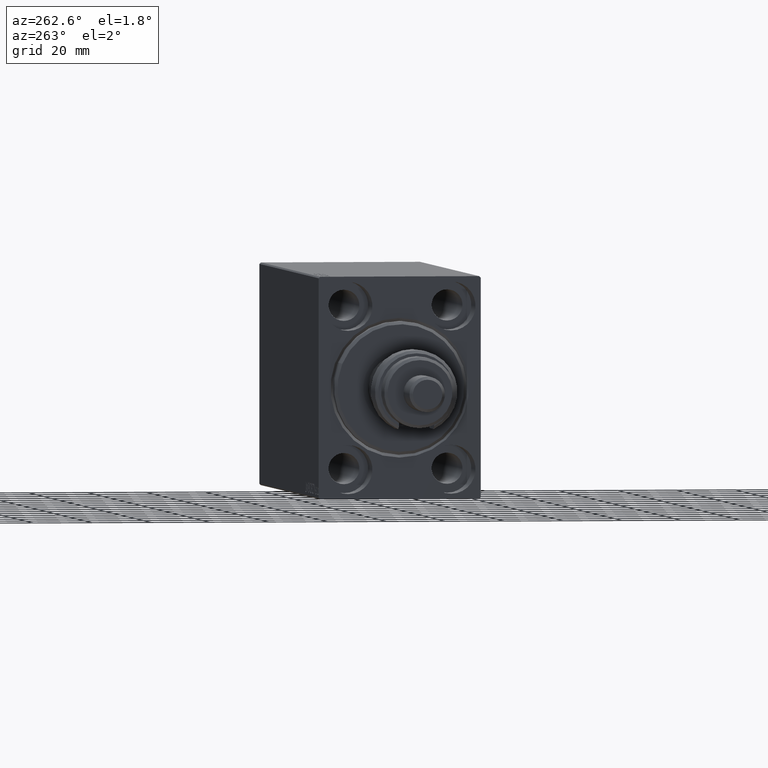
[diagram: clean part render]
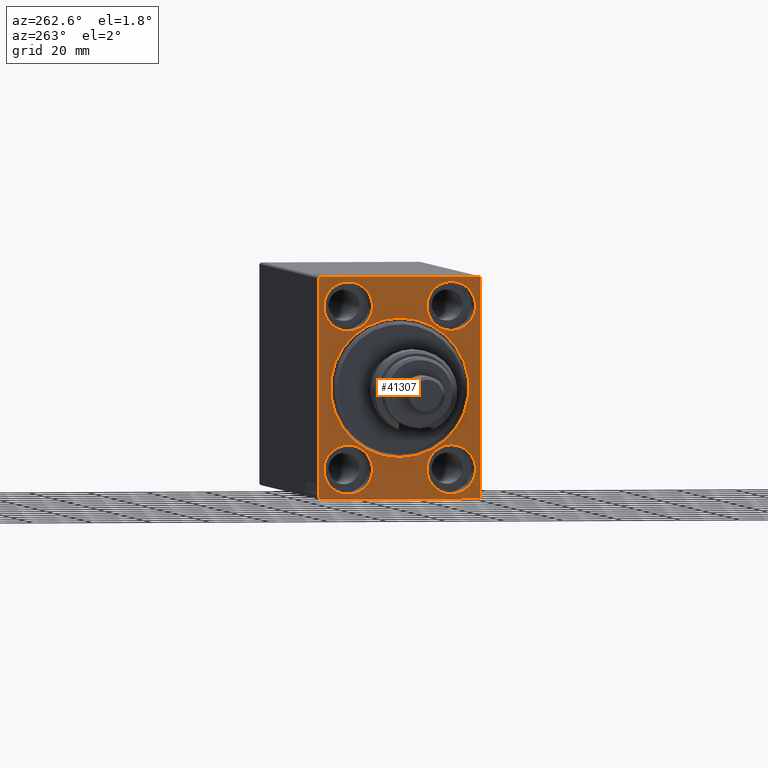
[diagram: same view with one face highlighted and labeled with its STEP entity id]
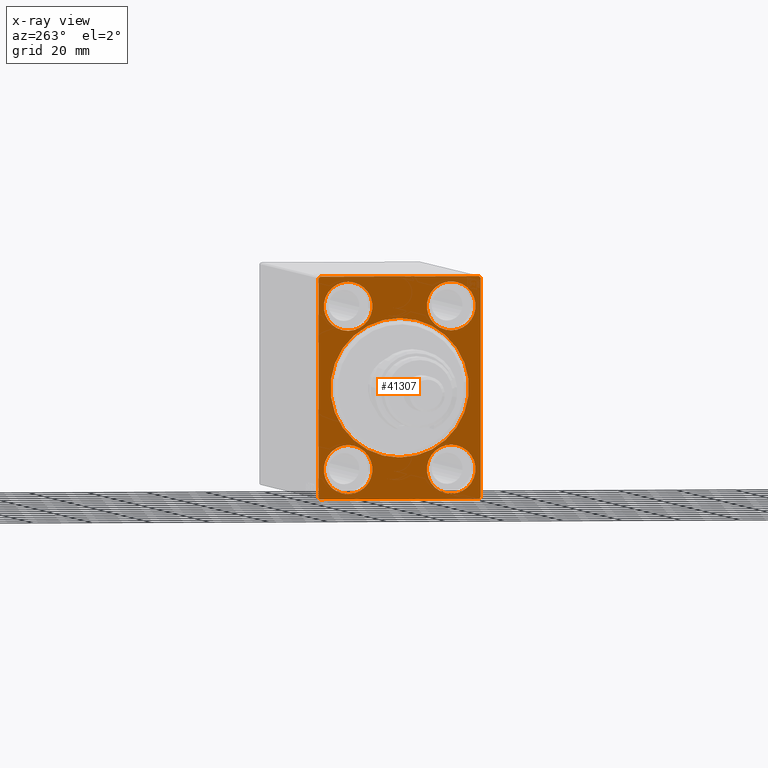
[diagram: x-ray of the same camera — body ghosted, the highlighted face saturated]
A machine part, auxiliary view. The second image highlights one B-rep face of the part: STEP entity #41307.
The next image is the same camera in x-ray: the body ghosted, the highlighted face saturated — about 0% of this face is hidden behind the body in this view.
In plain terms, the highlighted planar face has unit normal (1, 0, 0).
Its self-contained STEP definition (entity closure, byte-faithful):
#702 = CARTESIAN_POINT ( 'NONE',  ( 0.000000000000000000, 17.50000000000000355, 27.49999999999999645 ) ) ;
#1608 = VERTEX_POINT ( 'NONE', #32578 ) ;
#1792 = VECTOR ( 'NONE', #17289, 1000.000000000000114 ) ;
#2292 = AXIS2_PLACEMENT_3D ( 'NONE', #3979, #11014, #25313 ) ;
#2709 = VERTEX_POINT ( 'NONE', #8818 ) ;
#2742 = EDGE_CURVE ( 'NONE', #34864, #21541, #21012, .T. ) ;
#3583 = EDGE_LOOP ( 'NONE', ( #8500, #13045 ) ) ;
#3979 = CARTESIAN_POINT ( 'NONE',  ( 0.000000000000000000, -17.49999999999999645, 27.49999999999999645 ) ) ;
#5062 = CARTESIAN_POINT ( 'NONE',  ( 0.000000000000000000, 17.49999999999999645, -27.50000000000000355 ) ) ;
#5189 = VECTOR ( 'NONE', #22404, 1000.000000000000114 ) ;
#5286 = CIRCLE ( 'NONE', #12751, 8.249999999999992895 ) ;
#5500 = CARTESIAN_POINT ( 'NONE',  ( 0.000000000000000000, 27.50000000000000355, -37.00000000000002842 ) ) ;
#5639 = AXIS2_PLACEMENT_3D ( 'NONE', #45670, #20344, #13538 ) ;
#5666 = CIRCLE ( 'NONE', #5639, 8.250000000000000000 ) ;
#6142 = VERTEX_POINT ( 'NONE', #42713 ) ;
#6307 = CARTESIAN_POINT ( 'NONE',  ( 0.000000000000000000, 0.000000000000000000, 0.000000000000000000 ) ) ;
#6406 = CARTESIAN_POINT ( 'NONE',  ( 0.000000000000000000, -27.00000000000000355, -37.50000000000000000 ) ) ;
#6814 = EDGE_CURVE ( 'NONE', #6142, #24924, #42143, .T. ) ;
#7130 = EDGE_CURVE ( 'NONE', #24924, #6142, #31659, .T. ) ;
#8238 = VERTEX_POINT ( 'NONE', #44427 ) ;
#8391 = CARTESIAN_POINT ( 'NONE',  ( 0.000000000000000000, 27.49999999999999645, 37.50000000000000711 ) ) ;
#8500 = ORIENTED_EDGE ( 'NONE', *, *, #2742, .F. ) ;
#8818 = CARTESIAN_POINT ( 'NONE',  ( 0.000000000000000000, 27.49999999999999645, 37.00000000000004263 ) ) ;
#8931 = AXIS2_PLACEMENT_3D ( 'NONE', #24647, #10573, #24878 ) ;
#9160 = AXIS2_PLACEMENT_3D ( 'NONE', #36825, #29053, #18276 ) ;
#9269 = ORIENTED_EDGE ( 'NONE', *, *, #22706, .T. ) ;
#10312 = AXIS2_PLACEMENT_3D ( 'NONE', #13134, #27430, #34713 ) ;
#10410 = EDGE_CURVE ( 'NONE', #40121, #28319, #20348, .T. ) ;
#10573 = DIRECTION ( 'NONE',  ( -1.000000000000000000, 0.000000000000000000, 0.000000000000000000 ) ) ;
#11014 = DIRECTION ( 'NONE',  ( -1.000000000000000000, 0.000000000000000000, 0.000000000000000000 ) ) ;
#11296 = VERTEX_POINT ( 'NONE', #25073 ) ;
#11971 = FACE_BOUND ( 'NONE', #3583, .T. ) ;
#12659 = PLANE ( 'NONE',  #25468 ) ;
#12751 = AXIS2_PLACEMENT_3D ( 'NONE', #702, #30027, #33326 ) ;
#13045 = ORIENTED_EDGE ( 'NONE', *, *, #33940, .F. ) ;
#13118 = CARTESIAN_POINT ( 'NONE',  ( 0.000000000000000000, 17.49999999999999645, -35.75000000000000711 ) ) ;
#13134 = CARTESIAN_POINT ( 'NONE',  ( 0.000000000000000000, 17.49999999999999645, -27.50000000000000355 ) ) ;
#13519 = LINE ( 'NONE', #24301, #26154 ) ;
#13538 = DIRECTION ( 'NONE',  ( 0.000000000000000000, 0.000000000000000000, 1.000000000000000000 ) ) ;
#13979 = CARTESIAN_POINT ( 'NONE',  ( 0.000000000000000000, -27.50000000000000355, 37.00000000000000000 ) ) ;
#14105 = ORIENTED_EDGE ( 'NONE', *, *, #33524, .T. ) ;
#14240 = DIRECTION ( 'NONE',  ( 0.000000000000000000, 0.000000000000000000, -1.000000000000000000 ) ) ;
#14429 = ORIENTED_EDGE ( 'NONE', *, *, #32482, .F. ) ;
#14475 = CARTESIAN_POINT ( 'NONE',  ( 0.000000000000000000, 0.000000000000000000, 0.000000000000000000 ) ) ;
#14936 = ORIENTED_EDGE ( 'NONE', *, *, #7130, .T. ) ;
#15132 = LINE ( 'NONE', #32241, #29140 ) ;
#15788 = ORIENTED_EDGE ( 'NONE', *, *, #41289, .F. ) ;
#15928 = ORIENTED_EDGE ( 'NONE', *, *, #40132, .F. ) ;
#16087 = DIRECTION ( 'NONE',  ( 0.000000000000000000, 0.000000000000000000, 1.000000000000000000 ) ) ;
#16445 = CIRCLE ( 'NONE', #8931, 8.249999999999992895 ) ;
#16470 = VECTOR ( 'NONE', #26822, 1000.000000000000000 ) ;
#16514 = CARTESIAN_POINT ( 'NONE',  ( 0.000000000000000000, -27.50000000000000355, -37.50000000000000000 ) ) ;
#16803 = ORIENTED_EDGE ( 'NONE', *, *, #10410, .T. ) ;
#17049 = ORIENTED_EDGE ( 'NONE', *, *, #20437, .F. ) ;
#17163 = CIRCLE ( 'NONE', #26181, 8.250000000000000000 ) ;
#17289 = DIRECTION ( 'NONE',  ( -0.000000000000000000, -0.7071067811865474617, 0.7071067811865474617 ) ) ;
#17775 = EDGE_CURVE ( 'NONE', #34732, #8238, #44583, .T. ) ;
#17915 = EDGE_LOOP ( 'NONE', ( #17049, #20321 ) ) ;
#18276 = DIRECTION ( 'NONE',  ( 0.000000000000000000, 0.000000000000000000, -1.000000000000000000 ) ) ;
#18465 = CARTESIAN_POINT ( 'NONE',  ( 0.000000000000000000, 26.99999999999999645, 37.50000000000000711 ) ) ;
#18878 = ORIENTED_EDGE ( 'NONE', *, *, #37913, .F. ) ;
#19066 = EDGE_CURVE ( 'NONE', #33215, #1608, #5666, .T. ) ;
#19306 = CIRCLE ( 'NONE', #10312, 8.250000000000000000 ) ;
#19597 = LINE ( 'NONE', #23089, #5189 ) ;
#19988 = EDGE_LOOP ( 'NONE', ( #14429, #32530, #38644, #9269, #18878, #14105, #15928, #16803 ) ) ;
#20321 = ORIENTED_EDGE ( 'NONE', *, *, #24640, .F. ) ;
#20344 = DIRECTION ( 'NONE',  ( -1.000000000000000000, 0.000000000000000000, 0.000000000000000000 ) ) ;
#20348 = LINE ( 'NONE', #31824, #1792 ) ;
#20393 = DIRECTION ( 'NONE',  ( 1.000000000000000000, 0.000000000000000000, 0.000000000000000000 ) ) ;
#20437 = EDGE_CURVE ( 'NONE', #45432, #43708, #28162, .T. ) ;
#20484 = LINE ( 'NONE', #16514, #16470 ) ;
#20598 = AXIS2_PLACEMENT_3D ( 'NONE', #43926, #26094, #40401 ) ;
#20792 = CARTESIAN_POINT ( 'NONE',  ( 0.000000000000000000, -27.50000000000000355, -37.00000000000000000 ) ) ;
#21012 = CIRCLE ( 'NONE', #2292, 8.249999999999992895 ) ;
#21541 = VERTEX_POINT ( 'NONE', #46245 ) ;
#21715 = CARTESIAN_POINT ( 'NONE',  ( 0.000000000000000000, 0.000000000000000000, 23.50000000000001776 ) ) ;
#21956 = LINE ( 'NONE', #32752, #22971 ) ;
#22404 = DIRECTION ( 'NONE',  ( 0.000000000000000000, -0.7071067811865474617, -0.7071067811865474617 ) ) ;
#22706 = EDGE_CURVE ( 'NONE', #42095, #2709, #21956, .T. ) ;
#22752 = FACE_BOUND ( 'NONE', #31682, .T. ) ;
#22971 = VECTOR ( 'NONE', #40012, 999.9999999999998863 ) ;
#23089 = CARTESIAN_POINT ( 'NONE',  ( 0.000000000000000000, 27.50000000000000355, -37.00000000000002842 ) ) ;
#23470 = VERTEX_POINT ( 'NONE', #34933 ) ;
#24301 = CARTESIAN_POINT ( 'NONE',  ( 0.000000000000000000, -27.50000000000000355, 37.50000000000000000 ) ) ;
#24640 = EDGE_CURVE ( 'NONE', #43708, #45432, #19306, .T. ) ;
#24647 = CARTESIAN_POINT ( 'NONE',  ( 0.000000000000000000, -17.49999999999999645, 27.49999999999999645 ) ) ;
#24878 = DIRECTION ( 'NONE',  ( 0.000000000000000000, 0.000000000000000000, 1.000000000000000000 ) ) ;
#24924 = VERTEX_POINT ( 'NONE', #21715 ) ;
#25073 = CARTESIAN_POINT ( 'NONE',  ( 0.000000000000000000, 27.00000000000003197, -37.50000000000000000 ) ) ;
#25313 = DIRECTION ( 'NONE',  ( 0.000000000000000000, 0.000000000000000000, 1.000000000000000000 ) ) ;
#25468 = AXIS2_PLACEMENT_3D ( 'NONE', #6307, #20393, #41273 ) ;
#25925 = AXIS2_PLACEMENT_3D ( 'NONE', #5062, #26635, #16087 ) ;
#26026 = CARTESIAN_POINT ( 'NONE',  ( 0.000000000000000000, -17.50000000000000355, -27.50000000000000355 ) ) ;
#26094 = DIRECTION ( 'NONE',  ( -1.000000000000000000, 0.000000000000000000, 0.000000000000000000 ) ) ;
#26154 = VECTOR ( 'NONE', #27816, 1000.000000000000000 ) ;
#26181 = AXIS2_PLACEMENT_3D ( 'NONE', #26026, #40574, #32837 ) ;
#26635 = DIRECTION ( 'NONE',  ( -1.000000000000000000, 0.000000000000000000, 0.000000000000000000 ) ) ;
#26822 = DIRECTION ( 'NONE',  ( 0.000000000000000000, 1.000000000000000000, 0.000000000000000000 ) ) ;
#27430 = DIRECTION ( 'NONE',  ( -1.000000000000000000, 0.000000000000000000, 0.000000000000000000 ) ) ;
#27482 = CARTESIAN_POINT ( 'NONE',  ( 0.000000000000000000, -27.50000000000000355, 37.00000000000000000 ) ) ;
#27816 = DIRECTION ( 'NONE',  ( 0.000000000000000000, 0.000000000000000000, -1.000000000000000000 ) ) ;
#28162 = CIRCLE ( 'NONE', #25925, 8.250000000000000000 ) ;
#28319 = VERTEX_POINT ( 'NONE', #20792 ) ;
#28579 = CARTESIAN_POINT ( 'NONE',  ( 0.000000000000000000, 17.49999999999999645, -19.25000000000000355 ) ) ;
#28740 = VERTEX_POINT ( 'NONE', #5500 ) ;
#29053 = DIRECTION ( 'NONE',  ( 1.000000000000000000, 0.000000000000000000, 0.000000000000000000 ) ) ;
#29140 = VECTOR ( 'NONE', #43262, 1000.000000000000000 ) ;
#29247 = VECTOR ( 'NONE', #33273, 1000.000000000000000 ) ;
#30021 = EDGE_CURVE ( 'NONE', #32498, #23470, #42484, .T. ) ;
#30027 = DIRECTION ( 'NONE',  ( -1.000000000000000000, 0.000000000000000000, 0.000000000000000000 ) ) ;
#31659 = CIRCLE ( 'NONE', #37632, 23.50000000000001776 ) ;
#31682 = EDGE_LOOP ( 'NONE', ( #42076, #34765 ) ) ;
#31824 = CARTESIAN_POINT ( 'NONE',  ( 0.000000000000000000, -27.00000000000000355, -37.50000000000000000 ) ) ;
#32241 = CARTESIAN_POINT ( 'NONE',  ( 0.000000000000000000, 27.50000000000000355, -37.50000000000000000 ) ) ;
#32482 = EDGE_CURVE ( 'NONE', #32498, #28319, #13519, .T. ) ;
#32498 = VERTEX_POINT ( 'NONE', #13979 ) ;
#32530 = ORIENTED_EDGE ( 'NONE', *, *, #30021, .T. ) ;
#32578 = CARTESIAN_POINT ( 'NONE',  ( 0.000000000000000000, -17.50000000000000355, -19.25000000000000355 ) ) ;
#32752 = CARTESIAN_POINT ( 'NONE',  ( 0.000000000000000000, 26.99999999999999645, 37.50000000000000711 ) ) ;
#32764 = DIRECTION ( 'NONE',  ( 1.000000000000000000, 0.000000000000000000, 0.000000000000000000 ) ) ;
#32837 = DIRECTION ( 'NONE',  ( 0.000000000000000000, 0.000000000000000000, 1.000000000000000000 ) ) ;
#33215 = VERTEX_POINT ( 'NONE', #33266 ) ;
#33266 = CARTESIAN_POINT ( 'NONE',  ( 0.000000000000000000, -17.50000000000000355, -35.75000000000000711 ) ) ;
#33273 = DIRECTION ( 'NONE',  ( 0.000000000000000000, -1.000000000000000000, -1.261617073437677999E-16 ) ) ;
#33326 = DIRECTION ( 'NONE',  ( 0.000000000000000000, 0.000000000000000000, 1.000000000000000000 ) ) ;
#33524 = EDGE_CURVE ( 'NONE', #28740, #11296, #19597, .T. ) ;
#33704 = VECTOR ( 'NONE', #34767, 1000.000000000000000 ) ;
#33940 = EDGE_CURVE ( 'NONE', #21541, #34864, #16445, .T. ) ;
#34255 = CARTESIAN_POINT ( 'NONE',  ( 0.000000000000000000, 17.50000000000000355, 35.74999999999999289 ) ) ;
#34713 = DIRECTION ( 'NONE',  ( 0.000000000000000000, 0.000000000000000000, 1.000000000000000000 ) ) ;
#34732 = VERTEX_POINT ( 'NONE', #34255 ) ;
#34765 = ORIENTED_EDGE ( 'NONE', *, *, #19066, .F. ) ;
#34767 = DIRECTION ( 'NONE',  ( -0.000000000000000000, 0.7071067811865279218, 0.7071067811865671127 ) ) ;
#34864 = VERTEX_POINT ( 'NONE', #38240 ) ;
#34933 = CARTESIAN_POINT ( 'NONE',  ( 0.000000000000000000, -27.00000000000003197, 37.50000000000000000 ) ) ;
#36825 = CARTESIAN_POINT ( 'NONE',  ( 0.000000000000000000, 0.000000000000000000, 0.000000000000000000 ) ) ;
#37011 = ORIENTED_EDGE ( 'NONE', *, *, #17775, .F. ) ;
#37080 = FACE_OUTER_BOUND ( 'NONE', #19988, .T. ) ;
#37632 = AXIS2_PLACEMENT_3D ( 'NONE', #14475, #32764, #14240 ) ;
#37913 = EDGE_CURVE ( 'NONE', #28740, #2709, #15132, .T. ) ;
#38240 = CARTESIAN_POINT ( 'NONE',  ( 0.000000000000000000, -17.49999999999999645, 35.74999999999999289 ) ) ;
#38644 = ORIENTED_EDGE ( 'NONE', *, *, #41603, .F. ) ;
#38653 = EDGE_CURVE ( 'NONE', #1608, #33215, #17163, .T. ) ;
#38892 = ORIENTED_EDGE ( 'NONE', *, *, #6814, .T. ) ;
#40012 = DIRECTION ( 'NONE',  ( -0.000000000000000000, 0.7071067811865721087, -0.7071067811865230368 ) ) ;
#40121 = VERTEX_POINT ( 'NONE', #6406 ) ;
#40132 = EDGE_CURVE ( 'NONE', #40121, #11296, #20484, .T. ) ;
#40346 = FACE_BOUND ( 'NONE', #42006, .T. ) ;
#40401 = DIRECTION ( 'NONE',  ( 0.000000000000000000, 0.000000000000000000, 1.000000000000000000 ) ) ;
#40574 = DIRECTION ( 'NONE',  ( -1.000000000000000000, 0.000000000000000000, 0.000000000000000000 ) ) ;
#40586 = FACE_BOUND ( 'NONE', #44719, .T. ) ;
#41273 = DIRECTION ( 'NONE',  ( 0.000000000000000000, 0.000000000000000000, -1.000000000000000000 ) ) ;
#41289 = EDGE_CURVE ( 'NONE', #8238, #34732, #5286, .T. ) ;
#41307 = ADVANCED_FACE ( 'NONE', ( #40346, #44095, #11971, #40586, #22752, #37080 ), #12659, .F. ) ;
#41603 = EDGE_CURVE ( 'NONE', #42095, #23470, #43341, .T. ) ;
#42006 = EDGE_LOOP ( 'NONE', ( #14936, #38892 ) ) ;
#42076 = ORIENTED_EDGE ( 'NONE', *, *, #38653, .F. ) ;
#42095 = VERTEX_POINT ( 'NONE', #18465 ) ;
#42143 = CIRCLE ( 'NONE', #9160, 23.50000000000001776 ) ;
#42484 = LINE ( 'NONE', #27482, #33704 ) ;
#42713 = CARTESIAN_POINT ( 'NONE',  ( 0.000000000000000000, 2.877919977996282293E-15, -23.50000000000001776 ) ) ;
#43262 = DIRECTION ( 'NONE',  ( 0.000000000000000000, -9.251858538542970348E-17, 1.000000000000000000 ) ) ;
#43341 = LINE ( 'NONE', #8391, #29247 ) ;
#43708 = VERTEX_POINT ( 'NONE', #13118 ) ;
#43926 = CARTESIAN_POINT ( 'NONE',  ( 0.000000000000000000, 17.50000000000000355, 27.49999999999999645 ) ) ;
#44095 = FACE_BOUND ( 'NONE', #17915, .T. ) ;
#44427 = CARTESIAN_POINT ( 'NONE',  ( 0.000000000000000000, 17.50000000000000355, 19.25000000000000000 ) ) ;
#44583 = CIRCLE ( 'NONE', #20598, 8.249999999999992895 ) ;
#44719 = EDGE_LOOP ( 'NONE', ( #37011, #15788 ) ) ;
#45432 = VERTEX_POINT ( 'NONE', #28579 ) ;
#45670 = CARTESIAN_POINT ( 'NONE',  ( 0.000000000000000000, -17.50000000000000355, -27.50000000000000355 ) ) ;
#46245 = CARTESIAN_POINT ( 'NONE',  ( 0.000000000000000000, -17.49999999999999645, 19.25000000000000000 ) ) ;